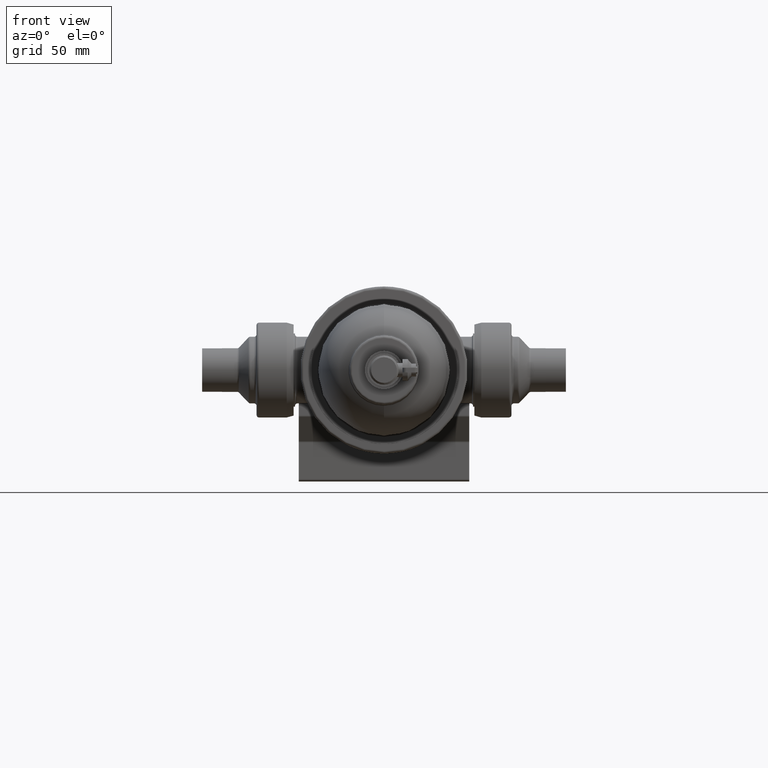
[diagram: clean part render]
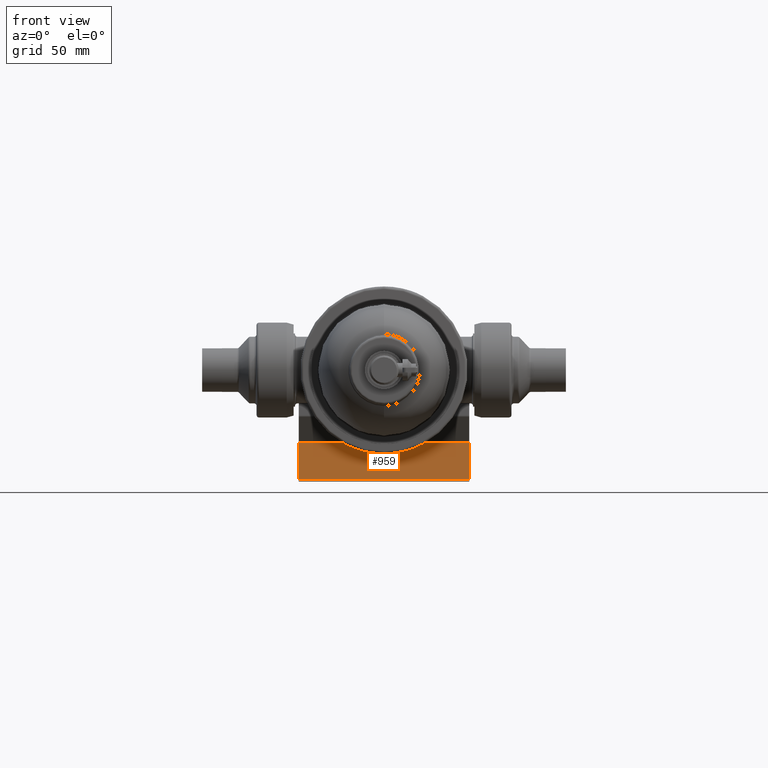
[diagram: same view with one face highlighted and labeled with its STEP entity id]
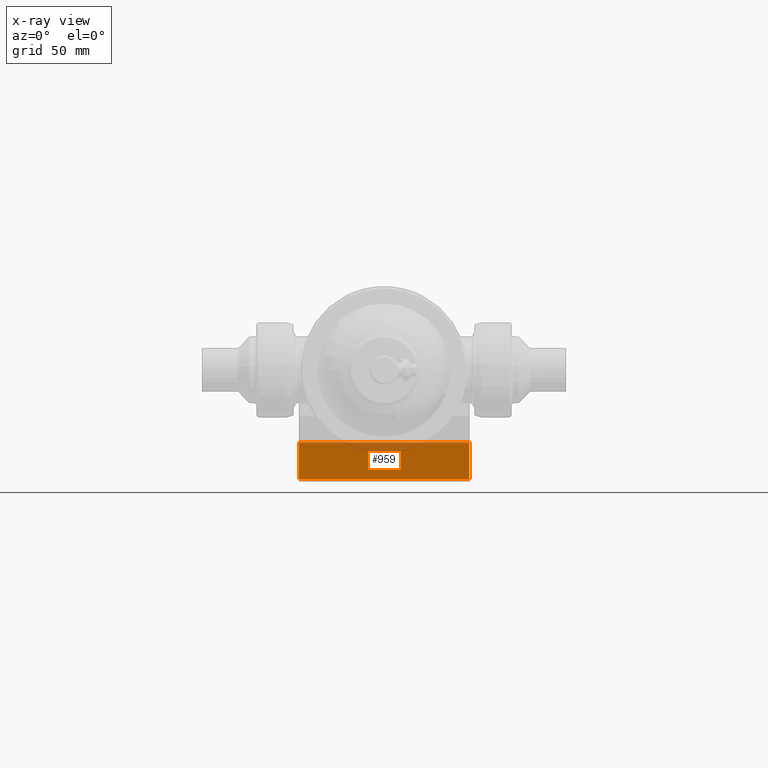
[diagram: x-ray of the same camera — body ghosted, the highlighted face saturated]
A machine part, front view. The second image highlights one B-rep face of the part: STEP entity #959.
The next image is the same camera in x-ray: the body ghosted, the highlighted face saturated — about 10% of this face is hidden behind the body in this view.
In plain terms, the highlighted planar face has unit normal (-0, 1, 0).
Its self-contained STEP definition (entity closure, byte-faithful):
#373 = DIRECTION ( 'NONE',  ( 0.0000000000000000000, -0.0000000000000000000, 1.000000000000000000 ) ) ;
#524 = DIRECTION ( 'NONE',  ( 0.0000000000000000000, 0.0000000000000000000, -1.000000000000000000 ) ) ;
#958 = CARTESIAN_POINT ( 'NONE',  ( 66.50000000000000000, 40.80000000001338378, -85.00000000000000000 ) ) ;
#959 = ADVANCED_FACE ( 'NONE', ( #9284 ), #1416, .F. ) ;
#1279 = DIRECTION ( 'NONE',  ( -1.000000000000000000, 0.0000000000000000000, 0.0000000000000000000 ) ) ;
#1416 = PLANE ( 'NONE',  #6641 ) ;
#1701 = CARTESIAN_POINT ( 'NONE',  ( -66.50000000000000000, 40.80000000001338378, -85.00000000000000000 ) ) ;
#2281 = LINE ( 'NONE', #7214, #10907 ) ;
#2708 = ORIENTED_EDGE ( 'NONE', *, *, #9038, .T. ) ;
#3464 = VERTEX_POINT ( 'NONE', #7253 ) ;
#5097 = CARTESIAN_POINT ( 'NONE',  ( 66.50000000000000000, 40.80000000001338378, -55.99999999999998579 ) ) ;
#5218 = LINE ( 'NONE', #7992, #14214 ) ;
#5471 = EDGE_CURVE ( 'NONE', #7462, #13757, #2281, .T. ) ;
#6222 = VERTEX_POINT ( 'NONE', #12871 ) ;
#6434 = CARTESIAN_POINT ( 'NONE',  ( -66.50000000000000000, 40.80000000001338378, -56.59288013596200528 ) ) ;
#6641 = AXIS2_PLACEMENT_3D ( 'NONE', #13796, #7053, #373 ) ;
#7053 = DIRECTION ( 'NONE',  ( -0.0000000000000000000, 1.000000000000000000, 0.0000000000000000000 ) ) ;
#7214 = CARTESIAN_POINT ( 'NONE',  ( -66.50000000000000000, 40.80000000001338378, -55.99999999999998579 ) ) ;
#7253 = CARTESIAN_POINT ( 'NONE',  ( 66.50000000000000000, 40.80000000001338378, -85.00000000000000000 ) ) ;
#7462 = VERTEX_POINT ( 'NONE', #6434 ) ;
#7992 = CARTESIAN_POINT ( 'NONE',  ( -66.50000000000000000, 40.80000000001338378, -56.59288013596200528 ) ) ;
#8107 = ORIENTED_EDGE ( 'NONE', *, *, #13372, .F. ) ;
#8734 = LINE ( 'NONE', #958, #14372 ) ;
#8872 = EDGE_CURVE ( 'NONE', #13757, #3464, #8734, .T. ) ;
#9038 = EDGE_CURVE ( 'NONE', #6222, #7462, #5218, .T. ) ;
#9284 = FACE_OUTER_BOUND ( 'NONE', #12504, .T. ) ;
#9939 = DIRECTION ( 'NONE',  ( 1.000000000000000000, -0.0000000000000000000, -0.0000000000000000000 ) ) ;
#10632 = ORIENTED_EDGE ( 'NONE', *, *, #8872, .T. ) ;
#10907 = VECTOR ( 'NONE', #524, 1000.000000000000000 ) ;
#11853 = DIRECTION ( 'NONE',  ( 0.0000000000000000000, 0.0000000000000000000, -1.000000000000000000 ) ) ;
#12504 = EDGE_LOOP ( 'NONE', ( #8107, #2708, #12535, #10632 ) ) ;
#12535 = ORIENTED_EDGE ( 'NONE', *, *, #5471, .T. ) ;
#12871 = CARTESIAN_POINT ( 'NONE',  ( 66.50000000000000000, 40.80000000001338378, -56.59288013596200528 ) ) ;
#13372 = EDGE_CURVE ( 'NONE', #6222, #3464, #13907, .T. ) ;
#13540 = VECTOR ( 'NONE', #11853, 1000.000000000000000 ) ;
#13757 = VERTEX_POINT ( 'NONE', #1701 ) ;
#13796 = CARTESIAN_POINT ( 'NONE',  ( 66.50000000000000000, 40.80000000001338378, -55.99999999999998579 ) ) ;
#13907 = LINE ( 'NONE', #5097, #13540 ) ;
#14214 = VECTOR ( 'NONE', #1279, 1000.000000000000000 ) ;
#14372 = VECTOR ( 'NONE', #9939, 1000.000000000000000 ) ;